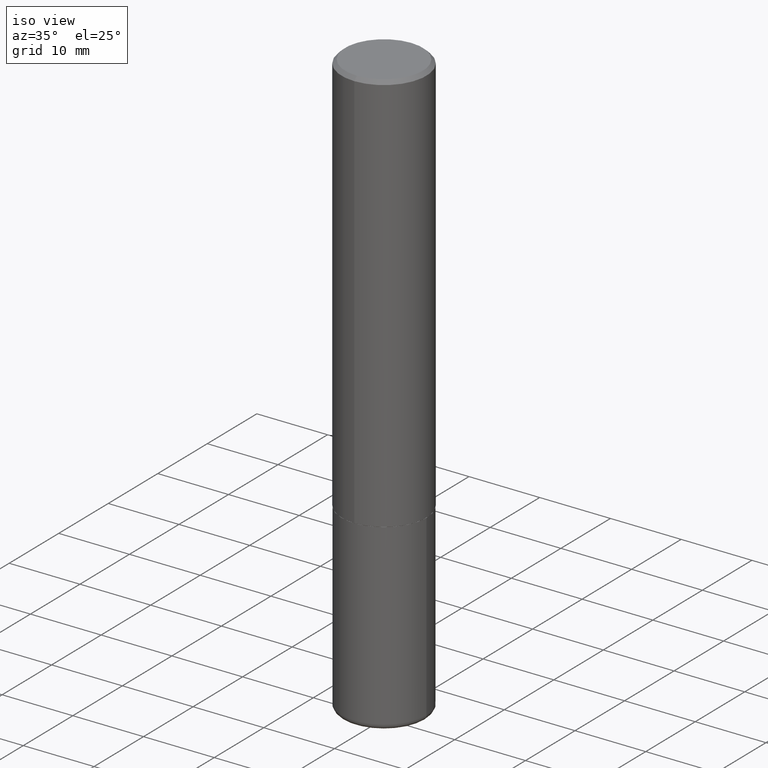
[diagram: clean part render]
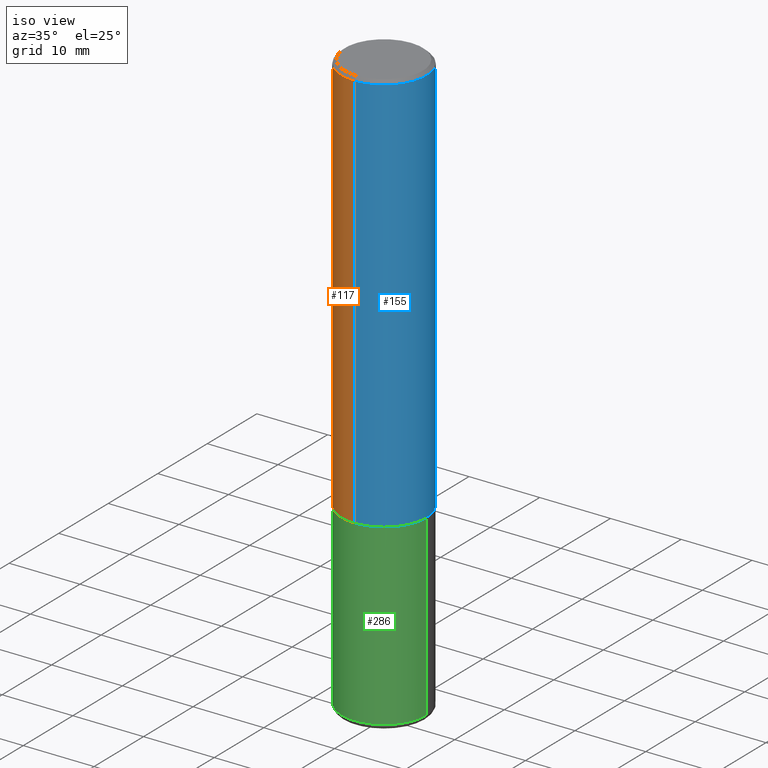
[diagram: same view with three faces highlighted in distinct colors, each labeled with its STEP entity id]
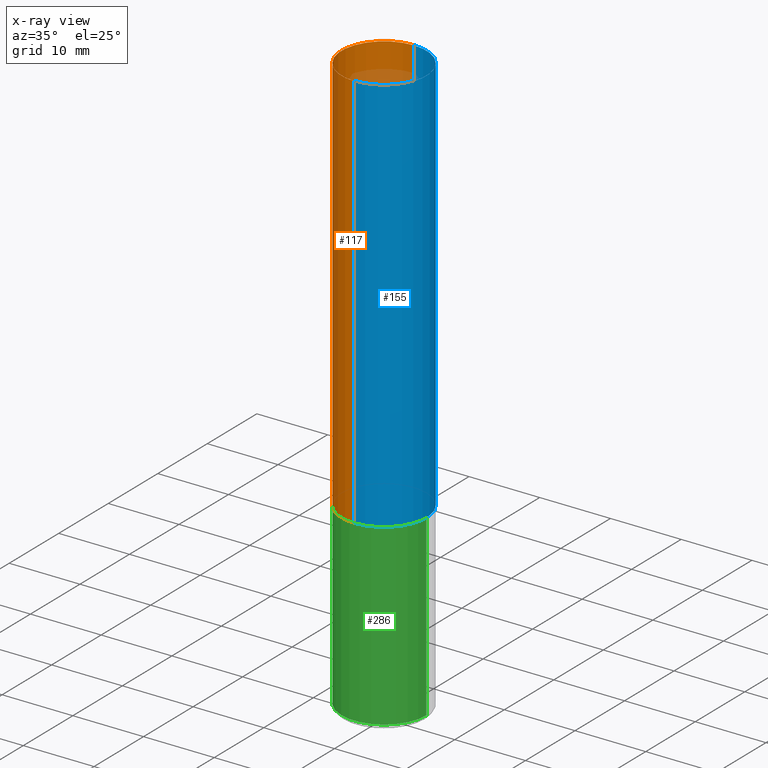
[diagram: x-ray of the same camera — body ghosted, the three highlighted faces saturated]
A machine part, iso view with three faces highlighted in distinct colors.
The next image is the same camera in x-ray (body ghosted, the three faces saturated) — at least one of them is partly hidden behind the body in this view.
Their STEP definitions:

[orange] entity #117 — the highlighted cylindrical surface (partial cylindrical patch) has radius 5.9995 mm, axis along (-0, 0, 1).
#5 = DIRECTION ( 'NONE',  ( -2.443198551934710321E-29, 3.494732472144603410E-15, 1.000000000000000000 ) ) ;
#13 = CARTESIAN_POINT ( 'NONE',  ( 1.678301941865357380E-15, 0.2362000000000001321, -8.254558099205557624E-16 ) ) ;
#25 = VERTEX_POINT ( 'NONE', #231 ) ;
#28 = CIRCLE ( 'NONE', #305, 0.2362000000000002709 ) ;
#39 = CYLINDRICAL_SURFACE ( 'NONE', #304, 0.2362000000000001321 ) ;
#43 = LINE ( 'NONE', #13, #90 ) ;
#47 = EDGE_CURVE ( 'NONE', #315, #411, #43, .T. ) ;
#49 = CARTESIAN_POINT ( 'NONE',  ( 1.678301941865385582E-15, 0.2361999999999924160, -2.243100000000000982 ) ) ;
#67 = VECTOR ( 'NONE', #123, 39.37007874015748143 ) ;
#71 = FACE_OUTER_BOUND ( 'NONE', #160, .T. ) ;
#90 = VECTOR ( 'NONE', #142, 39.37007874015748143 ) ;
#96 = CARTESIAN_POINT ( 'NONE',  ( 1.649375784469496525E-15, 0.2361999999999999378, -0.02000000000000091288 ) ) ;
#97 = ORIENTED_EDGE ( 'NONE', *, *, #47, .F. ) ;
#117 = ADVANCED_FACE ( 'NONE', ( #71 ), #39, .T. ) ;
#118 = DIRECTION ( 'NONE',  ( -2.443198551934710321E-29, 3.494732472144603410E-15, 1.000000000000000000 ) ) ;
#123 = DIRECTION ( 'NONE',  ( -2.443198551934710321E-29, 3.494732472144603016E-15, 1.000000000000000000 ) ) ;
#125 = DIRECTION ( 'NONE',  ( -2.443198551934710321E-29, 3.494732472144603410E-15, 1.000000000000000000 ) ) ;
#128 = CIRCLE ( 'NONE', #136, 0.2361999999999999933 ) ;
#136 = AXIS2_PLACEMENT_3D ( 'NONE', #417, #125, #380 ) ;
#142 = DIRECTION ( 'NONE',  ( -2.443198551934710321E-29, 3.494732472144603016E-15, 1.000000000000000000 ) ) ;
#151 = CARTESIAN_POINT ( 'NONE',  ( -1.649375784469496920E-15, -0.2362000000000001321, 8.254558099205557624E-16 ) ) ;
#152 = CARTESIAN_POINT ( 'NONE',  ( -1.620449627073635079E-15, -0.2362000000000000766, -0.01999999999999926489 ) ) ;
#157 = ORIENTED_EDGE ( 'NONE', *, *, #378, .F. ) ;
#160 = EDGE_LOOP ( 'NONE', ( #97, #371, #357, #157 ) ) ;
#180 = DIRECTION ( 'NONE',  ( -6.982962677686265922E-15, -1.000000000000000000, 3.469747663417773058E-15 ) ) ;
#231 = CARTESIAN_POINT ( 'NONE',  ( -1.649375784469443080E-15, -0.2362000000000081257, -2.243099999999999206 ) ) ;
#232 = EDGE_CURVE ( 'NONE', #25, #249, #241, .T. ) ;
#241 = LINE ( 'NONE', #151, #67 ) ;
#249 = VERTEX_POINT ( 'NONE', #152 ) ;
#250 = EDGE_CURVE ( 'NONE', #315, #25, #28, .T. ) ;
#264 = DIRECTION ( 'NONE',  ( -6.982962677686265922E-15, -1.000000000000000000, 3.494732472144603410E-15 ) ) ;
#278 = CARTESIAN_POINT ( 'NONE',  ( 5.480338671844748839E-29, -7.839034408267561952E-15, -2.243100000000000094 ) ) ;
#301 = CARTESIAN_POINT ( 'NONE',  ( 0.000000000000000000, 0.000000000000000000, 0.000000000000000000 ) ) ;
#304 = AXIS2_PLACEMENT_3D ( 'NONE', #301, #5, #264 ) ;
#305 = AXIS2_PLACEMENT_3D ( 'NONE', #278, #118, #180 ) ;
#315 = VERTEX_POINT ( 'NONE', #49 ) ;
#357 = ORIENTED_EDGE ( 'NONE', *, *, #232, .T. ) ;
#371 = ORIENTED_EDGE ( 'NONE', *, *, #250, .T. ) ;
#378 = EDGE_CURVE ( 'NONE', #411, #249, #128, .T. ) ;
#380 = DIRECTION ( 'NONE',  ( -6.982962677686265922E-15, -1.000000000000000000, 3.487819265831411744E-15 ) ) ;
#411 = VERTEX_POINT ( 'NONE', #96 ) ;
#417 = CARTESIAN_POINT ( 'NONE',  ( 4.886397103869442398E-31, -6.989464944289237832E-17, -0.02000000000000009062 ) ) ;

[blue] entity #155 — the highlighted cylindrical surface (partial cylindrical patch) has radius 5.9995 mm, axis along (-0, 0, 1).
#13 = CARTESIAN_POINT ( 'NONE',  ( 1.678301941865357380E-15, 0.2362000000000001321, -8.254558099205557624E-16 ) ) ;
#14 = EDGE_CURVE ( 'NONE', #25, #315, #73, .T. ) ;
#25 = VERTEX_POINT ( 'NONE', #231 ) ;
#38 = DIRECTION ( 'NONE',  ( -2.443198551934710321E-29, 3.494732472144603410E-15, 1.000000000000000000 ) ) ;
#43 = LINE ( 'NONE', #13, #90 ) ;
#45 = AXIS2_PLACEMENT_3D ( 'NONE', #93, #191, #360 ) ;
#47 = EDGE_CURVE ( 'NONE', #315, #411, #43, .T. ) ;
#49 = CARTESIAN_POINT ( 'NONE',  ( 1.678301941865385582E-15, 0.2361999999999924160, -2.243100000000000982 ) ) ;
#67 = VECTOR ( 'NONE', #123, 39.37007874015748143 ) ;
#68 = CYLINDRICAL_SURFACE ( 'NONE', #292, 0.2362000000000001321 ) ;
#73 = CIRCLE ( 'NONE', #45, 0.2362000000000002709 ) ;
#80 = AXIS2_PLACEMENT_3D ( 'NONE', #120, #150, #184 ) ;
#90 = VECTOR ( 'NONE', #142, 39.37007874015748143 ) ;
#93 = CARTESIAN_POINT ( 'NONE',  ( 5.480338671844748839E-29, -7.839034408267561952E-15, -2.243100000000000094 ) ) ;
#96 = CARTESIAN_POINT ( 'NONE',  ( 1.649375784469496525E-15, 0.2361999999999999378, -0.02000000000000091288 ) ) ;
#120 = CARTESIAN_POINT ( 'NONE',  ( 4.886397103869442398E-31, -6.989464944289237832E-17, -0.02000000000000009062 ) ) ;
#123 = DIRECTION ( 'NONE',  ( -2.443198551934710321E-29, 3.494732472144603016E-15, 1.000000000000000000 ) ) ;
#131 = ORIENTED_EDGE ( 'NONE', *, *, #14, .T. ) ;
#133 = EDGE_LOOP ( 'NONE', ( #131, #257, #418, #384 ) ) ;
#142 = DIRECTION ( 'NONE',  ( -2.443198551934710321E-29, 3.494732472144603016E-15, 1.000000000000000000 ) ) ;
#150 = DIRECTION ( 'NONE',  ( -2.443198551934710321E-29, 3.494732472144603410E-15, 1.000000000000000000 ) ) ;
#151 = CARTESIAN_POINT ( 'NONE',  ( -1.649375784469496920E-15, -0.2362000000000001321, 8.254558099205557624E-16 ) ) ;
#152 = CARTESIAN_POINT ( 'NONE',  ( -1.620449627073635079E-15, -0.2362000000000000766, -0.01999999999999926489 ) ) ;
#155 = ADVANCED_FACE ( 'NONE', ( #202 ), #68, .T. ) ;
#184 = DIRECTION ( 'NONE',  ( -6.982962677686265922E-15, -1.000000000000000000, 3.487819265831411744E-15 ) ) ;
#191 = DIRECTION ( 'NONE',  ( -2.443198551934710321E-29, 3.494732472144603410E-15, 1.000000000000000000 ) ) ;
#202 = FACE_OUTER_BOUND ( 'NONE', #133, .T. ) ;
#231 = CARTESIAN_POINT ( 'NONE',  ( -1.649375784469443080E-15, -0.2362000000000081257, -2.243099999999999206 ) ) ;
#232 = EDGE_CURVE ( 'NONE', #25, #249, #241, .T. ) ;
#241 = LINE ( 'NONE', #151, #67 ) ;
#249 = VERTEX_POINT ( 'NONE', #152 ) ;
#257 = ORIENTED_EDGE ( 'NONE', *, *, #47, .T. ) ;
#258 = EDGE_CURVE ( 'NONE', #249, #411, #267, .T. ) ;
#267 = CIRCLE ( 'NONE', #80, 0.2361999999999999933 ) ;
#292 = AXIS2_PLACEMENT_3D ( 'NONE', #328, #38, #296 ) ;
#296 = DIRECTION ( 'NONE',  ( -6.982962677686265922E-15, -1.000000000000000000, 3.494732472144603410E-15 ) ) ;
#315 = VERTEX_POINT ( 'NONE', #49 ) ;
#328 = CARTESIAN_POINT ( 'NONE',  ( 0.000000000000000000, 0.000000000000000000, 0.000000000000000000 ) ) ;
#360 = DIRECTION ( 'NONE',  ( -6.982962677686265922E-15, -1.000000000000000000, 3.469747663417773058E-15 ) ) ;
#384 = ORIENTED_EDGE ( 'NONE', *, *, #232, .F. ) ;
#411 = VERTEX_POINT ( 'NONE', #96 ) ;
#418 = ORIENTED_EDGE ( 'NONE', *, *, #258, .F. ) ;

[green] entity #286 — the highlighted cylindrical surface (partial cylindrical patch) has radius 5.9995 mm, axis along (-0, 0, 1).
#1 = EDGE_LOOP ( 'NONE', ( #388, #287, #348, #351 ) ) ;
#3 = DIRECTION ( 'NONE',  ( -2.445468806185136877E-29, 3.491481338843145188E-15, 1.000000000000000000 ) ) ;
#18 = CARTESIAN_POINT ( 'NONE',  ( -0.2362000000000000766, -7.891499259769821311E-15, -2.244100000000000428 ) ) ;
#22 = CARTESIAN_POINT ( 'NONE',  ( 5.487876547960065873E-29, -7.835233272497903917E-15, -2.244100000000000428 ) ) ;
#26 = EDGE_CURVE ( 'NONE', #291, #218, #333, .T. ) ;
#34 = CIRCLE ( 'NONE', #407, 0.2361999999999999933 ) ;
#60 = CIRCLE ( 'NONE', #234, 0.2362000000000000210 ) ;
#79 = DIRECTION ( 'NONE',  ( -2.445468806185136597E-29, 3.491481338843145583E-15, 1.000000000000000000 ) ) ;
#82 = EDGE_CURVE ( 'NONE', #291, #349, #34, .T. ) ;
#85 = LINE ( 'NONE', #303, #376 ) ;
#146 = DIRECTION ( 'NONE',  ( -2.445468806185136597E-29, 3.491481338843145583E-15, 1.000000000000000000 ) ) ;
#168 = AXIS2_PLACEMENT_3D ( 'NONE', #340, #334, #214 ) ;
#186 = DIRECTION ( 'NONE',  ( -2.445468806185136877E-29, 3.491481338843145188E-15, 1.000000000000000000 ) ) ;
#200 = VECTOR ( 'NONE', #3, 39.37007874015748143 ) ;
#203 = DIRECTION ( 'NONE',  ( 1.000000000000000000, -6.982962677686265133E-15, 0.000000000000000000 ) ) ;
#214 = DIRECTION ( 'NONE',  ( 1.000000000000000000, -6.982962677686266711E-15, 4.876176775795936353E-29 ) ) ;
#218 = VERTEX_POINT ( 'NONE', #18 ) ;
#234 = AXIS2_PLACEMENT_3D ( 'NONE', #22, #79, #343 ) ;
#235 = CARTESIAN_POINT ( 'NONE',  ( -0.2361999999999999933, 1.678301941865356591E-15, -1.161852468318208757E-29 ) ) ;
#259 = CARTESIAN_POINT ( 'NONE',  ( 0.2362000000000000210, -9.484609056967400443E-15, -2.244100000000000428 ) ) ;
#277 = FACE_OUTER_BOUND ( 'NONE', #1, .T. ) ;
#286 = ADVANCED_FACE ( 'NONE', ( #277 ), #404, .T. ) ;
#287 = ORIENTED_EDGE ( 'NONE', *, *, #82, .T. ) ;
#291 = VERTEX_POINT ( 'NONE', #406 ) ;
#294 = CARTESIAN_POINT ( 'NONE',  ( 7.917694353785617077E-29, -1.130436913077245307E-14, -3.237700000000000244 ) ) ;
#300 = EDGE_CURVE ( 'NONE', #349, #374, #85, .T. ) ;
#303 = CARTESIAN_POINT ( 'NONE',  ( 0.2361999999999999933, -1.649375784469496131E-15, 1.151752954443000088E-29 ) ) ;
#327 = EDGE_CURVE ( 'NONE', #218, #374, #60, .T. ) ;
#333 = LINE ( 'NONE', #235, #200 ) ;
#334 = DIRECTION ( 'NONE',  ( -2.445468806185136597E-29, 3.491481338843145583E-15, 1.000000000000000000 ) ) ;
#340 = CARTESIAN_POINT ( 'NONE',  ( 0.000000000000000000, 0.000000000000000000, 0.000000000000000000 ) ) ;
#343 = DIRECTION ( 'NONE',  ( 1.000000000000000000, -6.982962677686268288E-15, 0.000000000000000000 ) ) ;
#348 = ORIENTED_EDGE ( 'NONE', *, *, #300, .T. ) ;
#349 = VERTEX_POINT ( 'NONE', #409 ) ;
#351 = ORIENTED_EDGE ( 'NONE', *, *, #327, .F. ) ;
#374 = VERTEX_POINT ( 'NONE', #259 ) ;
#376 = VECTOR ( 'NONE', #186, 39.37007874015748143 ) ;
#388 = ORIENTED_EDGE ( 'NONE', *, *, #26, .F. ) ;
#404 = CYLINDRICAL_SURFACE ( 'NONE', #168, 0.2361999999999999933 ) ;
#406 = CARTESIAN_POINT ( 'NONE',  ( -0.2362000000000001321, -9.626067188907095099E-15, -3.237700000000000244 ) ) ;
#407 = AXIS2_PLACEMENT_3D ( 'NONE', #294, #146, #203 ) ;
#409 = CARTESIAN_POINT ( 'NONE',  ( 0.2362000000000001321, -1.295374491524195117E-14, -3.237700000000000244 ) ) ;